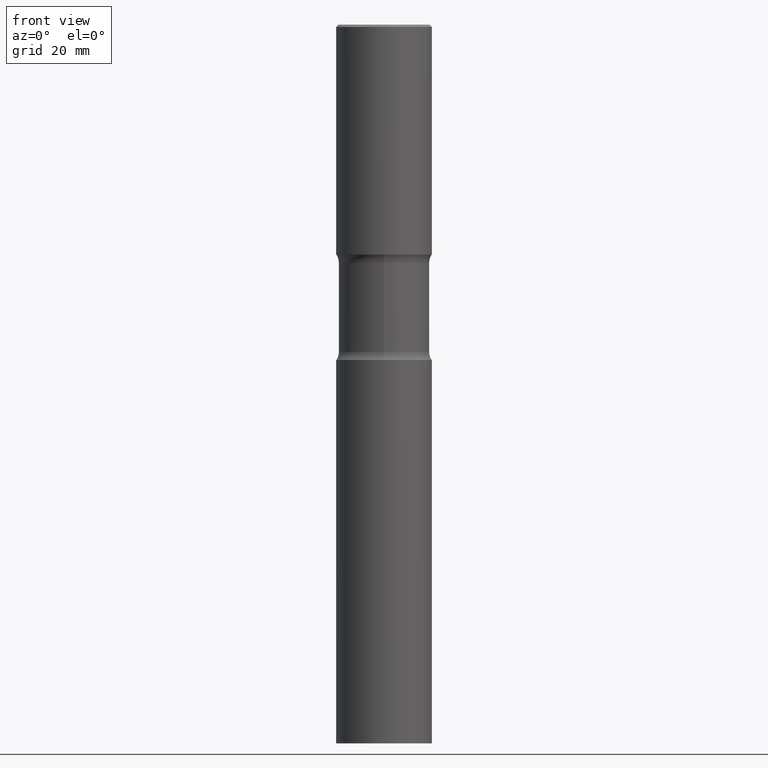
[diagram: clean part render]
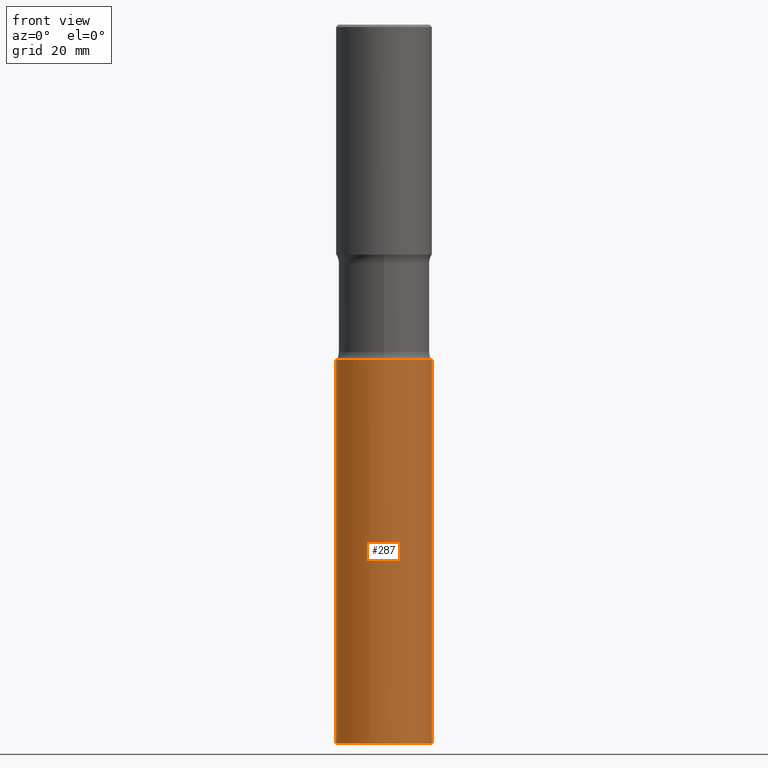
[diagram: same view with one face highlighted and labeled with its STEP entity id]
A machine part, front view. The second image highlights one B-rep face of the part: STEP entity #287.
In plain terms, the highlighted cylindrical surface (partial cylindrical patch) has radius 10 mm, axis along (-0, 0, 1).
Its self-contained STEP definition (entity closure, byte-faithful):
#15 = ORIENTED_EDGE ( 'NONE', *, *, #118, .F. ) ;
#21 = ORIENTED_EDGE ( 'NONE', *, *, #471, .T. ) ;
#27 = CARTESIAN_POINT ( 'NONE',  ( 6.739467482965615990E-29, -9.622173421717821235E-15, -2.755899999999998684 ) ) ;
#74 = CYLINDRICAL_SURFACE ( 'NONE', #306, 0.3937000000000000499 ) ;
#75 = VERTEX_POINT ( 'NONE', #453 ) ;
#89 = DIRECTION ( 'NONE',  ( -2.445468806185136877E-29, 3.491481338843145188E-15, 1.000000000000000000 ) ) ;
#100 = DIRECTION ( 'NONE',  ( 1.000000000000000000, -6.982962677686267499E-15, 0.000000000000000000 ) ) ;
#108 = EDGE_CURVE ( 'NONE', #268, #465, #171, .T. ) ;
#113 = AXIS2_PLACEMENT_3D ( 'NONE', #475, #295, #124 ) ;
#118 = EDGE_CURVE ( 'NONE', #396, #268, #490, .T. ) ;
#124 = DIRECTION ( 'NONE',  ( 1.000000000000000000, -6.982962677686267499E-15, 0.000000000000000000 ) ) ;
#153 = ORIENTED_EDGE ( 'NONE', *, *, #108, .F. ) ;
#159 = DIRECTION ( 'NONE',  ( 1.000000000000000000, -6.982962677686265922E-15, 4.876176775795935793E-29 ) ) ;
#171 = CIRCLE ( 'NONE', #457, 0.3937000000000000499 ) ;
#180 = DIRECTION ( 'NONE',  ( -2.445468806185136597E-29, 3.491481338843145583E-15, 1.000000000000000000 ) ) ;
#204 = LINE ( 'NONE', #439, #503 ) ;
#268 = VERTEX_POINT ( 'NONE', #349 ) ;
#272 = CARTESIAN_POINT ( 'NONE',  ( -0.3937000000000000499, 2.797406750687514786E-15, -1.936584745033356735E-29 ) ) ;
#284 = CIRCLE ( 'NONE', #113, 0.3937000000000000499 ) ;
#287 = ADVANCED_FACE ( 'NONE', ( #320 ), #74, .T. ) ;
#295 = DIRECTION ( 'NONE',  ( -2.445468806185136597E-29, 3.491481338843145583E-15, 1.000000000000000000 ) ) ;
#306 = AXIS2_PLACEMENT_3D ( 'NONE', #461, #430, #159 ) ;
#320 = FACE_OUTER_BOUND ( 'NONE', #449, .T. ) ;
#326 = CARTESIAN_POINT ( 'NONE',  ( 0.3937000000000000499, -1.237136582792290445E-14, -2.755899999999998684 ) ) ;
#349 = CARTESIAN_POINT ( 'NONE',  ( -0.3937000000000000499, -1.232315148344049260E-14, -2.755899999999998684 ) ) ;
#363 = CARTESIAN_POINT ( 'NONE',  ( -0.3937000000000000499, -1.232315148344049260E-14, -5.905499999999999972 ) ) ;
#377 = VECTOR ( 'NONE', #493, 39.37007874015748143 ) ;
#390 = ORIENTED_EDGE ( 'NONE', *, *, #507, .T. ) ;
#396 = VERTEX_POINT ( 'NONE', #363 ) ;
#430 = DIRECTION ( 'NONE',  ( -2.445468806185136597E-29, 3.491481338843145583E-15, 1.000000000000000000 ) ) ;
#439 = CARTESIAN_POINT ( 'NONE',  ( 0.3937000000000000499, -2.749192406205083217E-15, 1.919750796630860172E-29 ) ) ;
#449 = EDGE_LOOP ( 'NONE', ( #15, #21, #390, #153 ) ) ;
#453 = CARTESIAN_POINT ( 'NONE',  ( 0.3937000000000000499, -2.336813545274327834E-14, -5.905499999999999972 ) ) ;
#457 = AXIS2_PLACEMENT_3D ( 'NONE', #27, #180, #100 ) ;
#461 = CARTESIAN_POINT ( 'NONE',  ( 0.000000000000000000, 0.000000000000000000, 0.000000000000000000 ) ) ;
#465 = VERTEX_POINT ( 'NONE', #326 ) ;
#471 = EDGE_CURVE ( 'NONE', #396, #75, #284, .T. ) ;
#475 = CARTESIAN_POINT ( 'NONE',  ( 1.444171603492632270E-28, -2.061894304653819197E-14, -5.905499999999999972 ) ) ;
#490 = LINE ( 'NONE', #272, #377 ) ;
#493 = DIRECTION ( 'NONE',  ( -2.445468806185136877E-29, 3.491481338843145188E-15, 1.000000000000000000 ) ) ;
#503 = VECTOR ( 'NONE', #89, 39.37007874015748143 ) ;
#507 = EDGE_CURVE ( 'NONE', #75, #465, #204, .T. ) ;